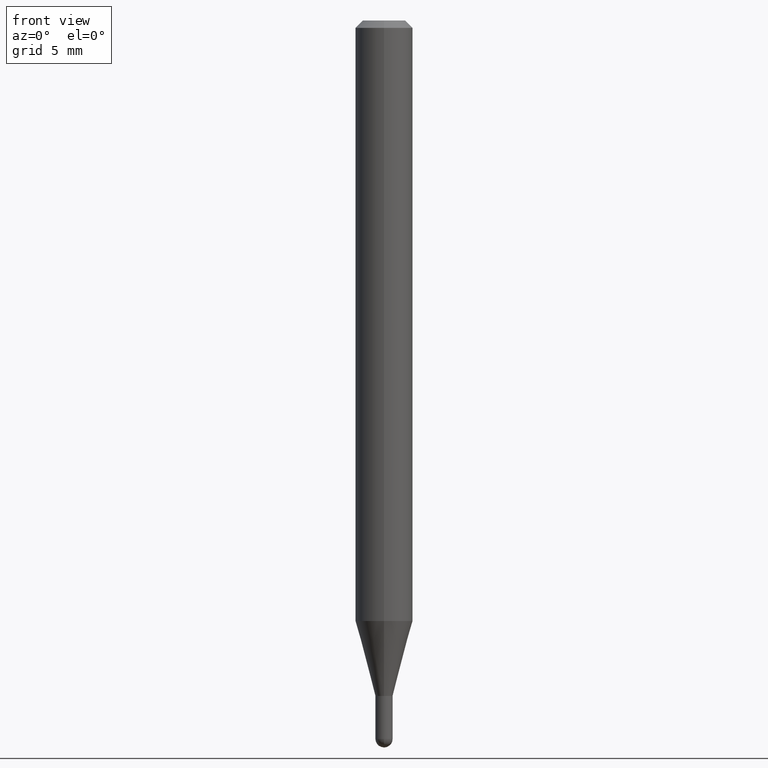
[diagram: clean part render]
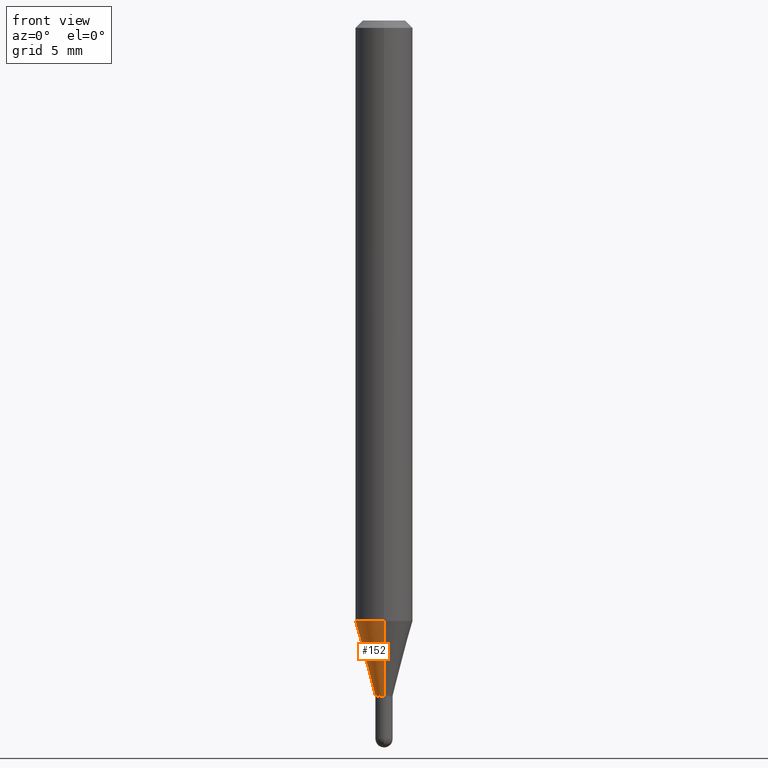
[diagram: same view with one face highlighted and labeled with its STEP entity id]
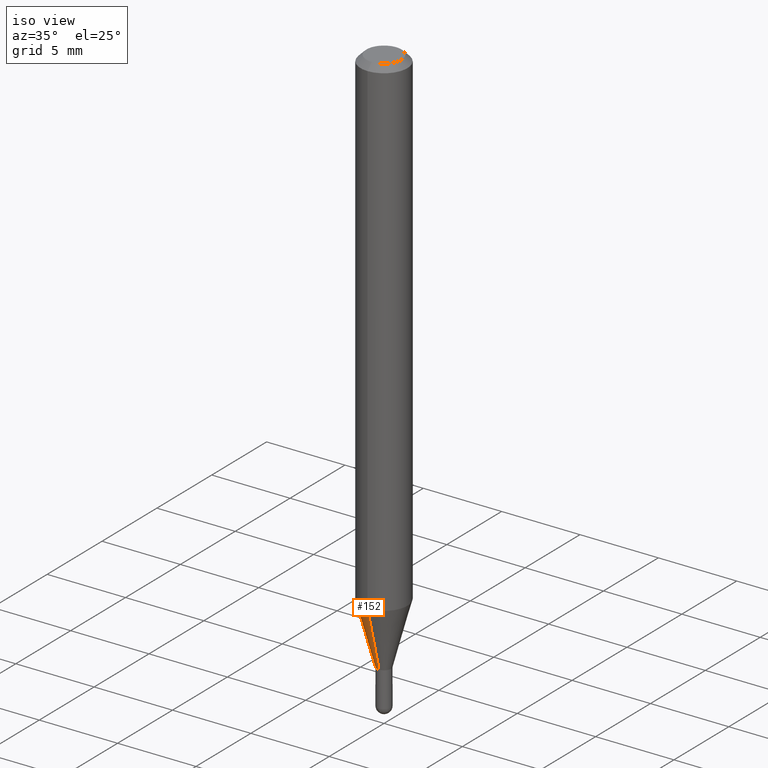
[diagram: same view with one face highlighted and labeled with its STEP entity id]
A machine part, front view. The second image highlights one B-rep face of the part: STEP entity #152.
A second angle (iso view) of the same face is appended — the face is thin or edge-on in the first view.
In plain terms, the highlighted conical surface has half-angle 15 deg.
Its self-contained STEP definition (entity closure, byte-faithful):
#3 = VECTOR ( 'NONE', #470, 39.37007874015748854 ) ;
#27 = CARTESIAN_POINT ( 'NONE',  ( 3.399408390091603285E-29, -4.853562337134410202E-15, -1.390100000000000113 ) ) ;
#38 = DIRECTION ( 'NONE',  ( 1.839019923739649619E-15, 0.2588190451025318972, 0.9659258262890650926 ) ) ;
#40 = LINE ( 'NONE', #510, #3 ) ;
#44 = CIRCLE ( 'NONE', #110, 0.01769999999999965004 ) ;
#59 = VERTEX_POINT ( 'NONE', #430 ) ;
#73 = LINE ( 'NONE', #495, #80 ) ;
#80 = VECTOR ( 'NONE', #38, 39.37007874015748854 ) ;
#89 = CARTESIAN_POINT ( 'NONE',  ( 2.726707748479693555E-16, 0.01769999999999479628, -1.390100000000000113 ) ) ;
#98 = CARTESIAN_POINT ( 'NONE',  ( 3.022027104128707959E-29, -4.314749877405350668E-15, -1.235779699107030671 ) ) ;
#102 = AXIS2_PLACEMENT_3D ( 'NONE', #27, #347, #146 ) ;
#106 = CARTESIAN_POINT ( 'NONE',  ( -1.235984393950104545E-16, -0.01770000000000450380, -1.390100000000000113 ) ) ;
#110 = AXIS2_PLACEMENT_3D ( 'NONE', #235, #188, #144 ) ;
#124 = EDGE_CURVE ( 'NONE', #321, #414, #44, .T. ) ;
#144 = DIRECTION ( 'NONE',  ( -6.982962677686265133E-15, -1.000000000000000000, 0.000000000000000000 ) ) ;
#146 = DIRECTION ( 'NONE',  ( -6.982962677686265133E-15, -1.000000000000000000, 0.000000000000000000 ) ) ;
#152 = ADVANCED_FACE ( 'NONE', ( #350 ), #428, .T. ) ;
#164 = ORIENTED_EDGE ( 'NONE', *, *, #204, .T. ) ;
#188 = DIRECTION ( 'NONE',  ( -2.445441615776996841E-29, 3.491520277055183358E-15, 1.000000000000000000 ) ) ;
#204 = EDGE_CURVE ( 'NONE', #414, #482, #40, .T. ) ;
#235 = CARTESIAN_POINT ( 'NONE',  ( 3.399408390091603285E-29, -4.853562337134410202E-15, -1.390100000000000113 ) ) ;
#240 = AXIS2_PLACEMENT_3D ( 'NONE', #98, #259, #330 ) ;
#259 = DIRECTION ( 'NONE',  ( -2.445441615776996841E-29, 3.491520277055183358E-15, 1.000000000000000000 ) ) ;
#263 = CIRCLE ( 'NONE', #240, 0.05904999999999999832 ) ;
#268 = EDGE_CURVE ( 'NONE', #59, #482, #263, .T. ) ;
#317 = ORIENTED_EDGE ( 'NONE', *, *, #124, .T. ) ;
#321 = VERTEX_POINT ( 'NONE', #89 ) ;
#330 = DIRECTION ( 'NONE',  ( -6.982962677686265922E-15, -1.000000000000000000, 4.626330217890369336E-15 ) ) ;
#335 = EDGE_LOOP ( 'NONE', ( #438, #317, #164, #368 ) ) ;
#345 = CARTESIAN_POINT ( 'NONE',  ( -4.123439461173439574E-16, -0.05905000000000432819, -1.235779699107030449 ) ) ;
#347 = DIRECTION ( 'NONE',  ( -2.445441615776996841E-29, 3.491520277055183358E-15, 1.000000000000000000 ) ) ;
#350 = FACE_OUTER_BOUND ( 'NONE', #335, .T. ) ;
#368 = ORIENTED_EDGE ( 'NONE', *, *, #268, .F. ) ;
#398 = EDGE_CURVE ( 'NONE', #321, #59, #73, .T. ) ;
#414 = VERTEX_POINT ( 'NONE', #106 ) ;
#428 = CONICAL_SURFACE ( 'NONE', #102, 0.01769999999999965004, 0.2617993877991575125 ) ;
#430 = CARTESIAN_POINT ( 'NONE',  ( 4.195754854663691246E-16, 0.05904999999999566845, -1.235779699107030893 ) ) ;
#438 = ORIENTED_EDGE ( 'NONE', *, *, #398, .F. ) ;
#470 = DIRECTION ( 'NONE',  ( -1.807323732225379049E-15, -0.2588190451025252359, 0.9659258262890670910 ) ) ;
#482 = VERTEX_POINT ( 'NONE', #345 ) ;
#495 = CARTESIAN_POINT ( 'NONE',  ( 1.257660642295692413E-16, 0.01769999999999479628, -1.390100000000000113 ) ) ;
#510 = CARTESIAN_POINT ( 'NONE',  ( -1.235984393950104545E-16, -0.01770000000000450380, -1.390100000000000113 ) ) ;